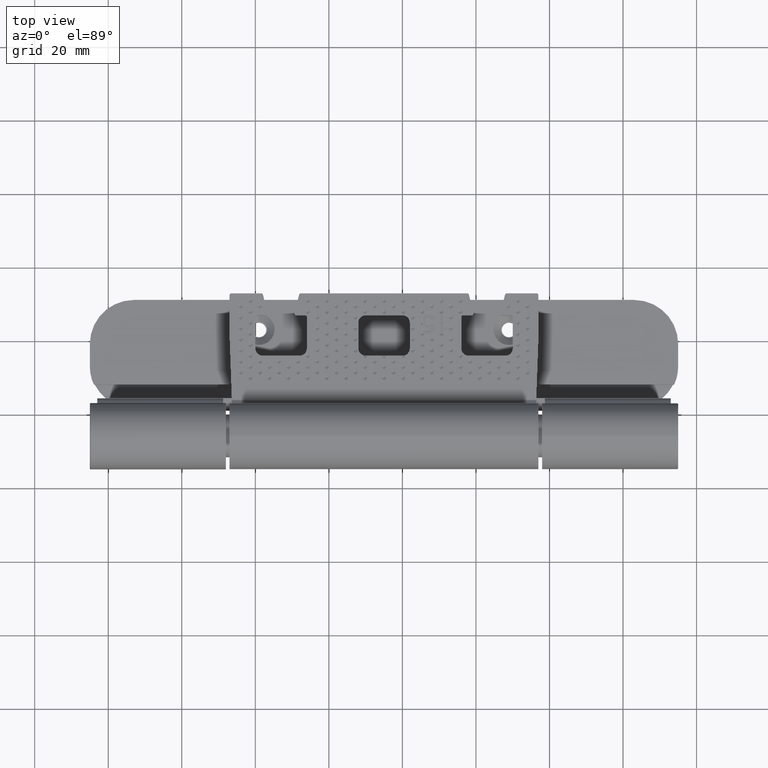
[diagram: clean part render]
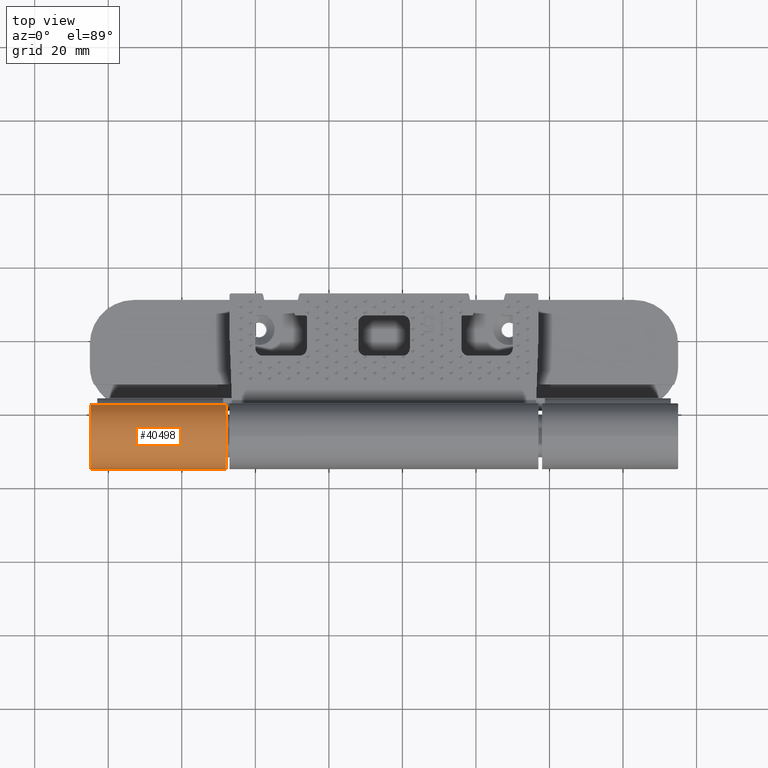
[diagram: same view with one face highlighted and labeled with its STEP entity id]
A machine part, top view. The second image highlights one B-rep face of the part: STEP entity #40498.
In plain terms, the highlighted cylindrical surface (edge-blend (fillet) strip) has radius 9 mm, axis along (1, -0, 0).
Its self-contained STEP definition (entity closure, byte-faithful):
#998 = DIRECTION ( 'NONE',  ( -1.000000000000000000, 2.492138128341370207E-17, 3.275690032116550253E-19 ) ) ;
#2427 = VECTOR ( 'NONE', #11344, 1000.000000000000000 ) ;
#3819 = EDGE_CURVE ( 'NONE', #44693, #23255, #49422, .T. ) ;
#4281 = CIRCLE ( 'NONE', #35312, 8.999999999999998224 ) ;
#7315 = DIRECTION ( 'NONE',  ( 0.000000000000000000, -5.551115123125787632E-17, 1.000000000000000000 ) ) ;
#8057 = DIRECTION ( 'NONE',  ( -1.000000000000000000, 2.492138128341370207E-17, 3.275690032116550253E-19 ) ) ;
#11344 = DIRECTION ( 'NONE',  ( -1.000000000000000000, 2.492138128341370207E-17, 3.275690032116550253E-19 ) ) ;
#11462 = CYLINDRICAL_SURFACE ( 'NONE', #46480, 8.999999999999998224 ) ;
#11749 = ORIENTED_EDGE ( 'NONE', *, *, #46092, .T. ) ;
#12444 = CARTESIAN_POINT ( 'NONE',  ( 36.79999999999996874, -4.996003610813203446E-16, 8.999999999999998224 ) ) ;
#18982 = FACE_OUTER_BOUND ( 'NONE', #20262, .T. ) ;
#20262 = EDGE_LOOP ( 'NONE', ( #35368, #11749, #53639, #21044 ) ) ;
#20957 = EDGE_CURVE ( 'NONE', #30423, #23255, #34859, .T. ) ;
#21044 = ORIENTED_EDGE ( 'NONE', *, *, #20957, .F. ) ;
#23255 = VERTEX_POINT ( 'NONE', #27677 ) ;
#25209 = DIRECTION ( 'NONE',  ( 0.000000000000000000, -5.551115123125782702E-17, 1.000000000000000000 ) ) ;
#26233 = VERTEX_POINT ( 'NONE', #54934 ) ;
#27677 = CARTESIAN_POINT ( 'NONE',  ( -2.948121028907474578E-18, -4.996003610813204432E-16, 9.000000000000000000 ) ) ;
#30423 = VERTEX_POINT ( 'NONE', #32632 ) ;
#31933 = CARTESIAN_POINT ( 'NONE',  ( 25.49999999999996803, 9.908740494779522123E-15, 8.999999999999989342 ) ) ;
#32632 = CARTESIAN_POINT ( 'NONE',  ( -2.948121028904591460E-18, 1.218706514328701254E-14, -9.000000000000000000 ) ) ;
#32957 = CARTESIAN_POINT ( 'NONE',  ( 36.79999999999996874, 0.000000000000000000, 0.000000000000000000 ) ) ;
#34859 = CIRCLE ( 'NONE', #41980, 9.000000000000000000 ) ;
#35312 = AXIS2_PLACEMENT_3D ( 'NONE', #32957, #42400, #25209 ) ;
#35368 = ORIENTED_EDGE ( 'NONE', *, *, #50048, .F. ) ;
#40383 = CARTESIAN_POINT ( 'NONE',  ( 25.49999999999996803, 1.040834085586084257E-14, -8.673617379884035472E-15 ) ) ;
#40498 = ADVANCED_FACE ( 'NONE', ( #18982 ), #11462, .T. ) ;
#41980 = AXIS2_PLACEMENT_3D ( 'NONE', #42685, #998, #52093 ) ;
#42400 = DIRECTION ( 'NONE',  ( -1.000000000000000000, 2.492138128341370207E-17, 3.275690032116550253E-19 ) ) ;
#42685 = CARTESIAN_POINT ( 'NONE',  ( 0.000000000000000000, 0.000000000000000000, 0.000000000000000000 ) ) ;
#44693 = VERTEX_POINT ( 'NONE', #12444 ) ;
#45843 = CARTESIAN_POINT ( 'NONE',  ( 25.49999999999996803, 1.201012333617478092E-14, -9.000000000000007105 ) ) ;
#46092 = EDGE_CURVE ( 'NONE', #26233, #44693, #4281, .T. ) ;
#46382 = LINE ( 'NONE', #45843, #46974 ) ;
#46480 = AXIS2_PLACEMENT_3D ( 'NONE', #40383, #49807, #7315 ) ;
#46974 = VECTOR ( 'NONE', #8057, 1000.000000000000000 ) ;
#49422 = LINE ( 'NONE', #31933, #2427 ) ;
#49807 = DIRECTION ( 'NONE',  ( -1.000000000000000000, 2.492138128341370207E-17, 3.275690032116550253E-19 ) ) ;
#50048 = EDGE_CURVE ( 'NONE', #26233, #30423, #46382, .T. ) ;
#52093 = DIRECTION ( 'NONE',  ( -3.275690032119416037E-19, -5.551115123125782702E-17, 1.000000000000000000 ) ) ;
#53639 = ORIENTED_EDGE ( 'NONE', *, *, #3819, .T. ) ;
#54934 = CARTESIAN_POINT ( 'NONE',  ( 36.79999999999996874, 1.218706514328701254E-14, -8.999999999999998224 ) ) ;